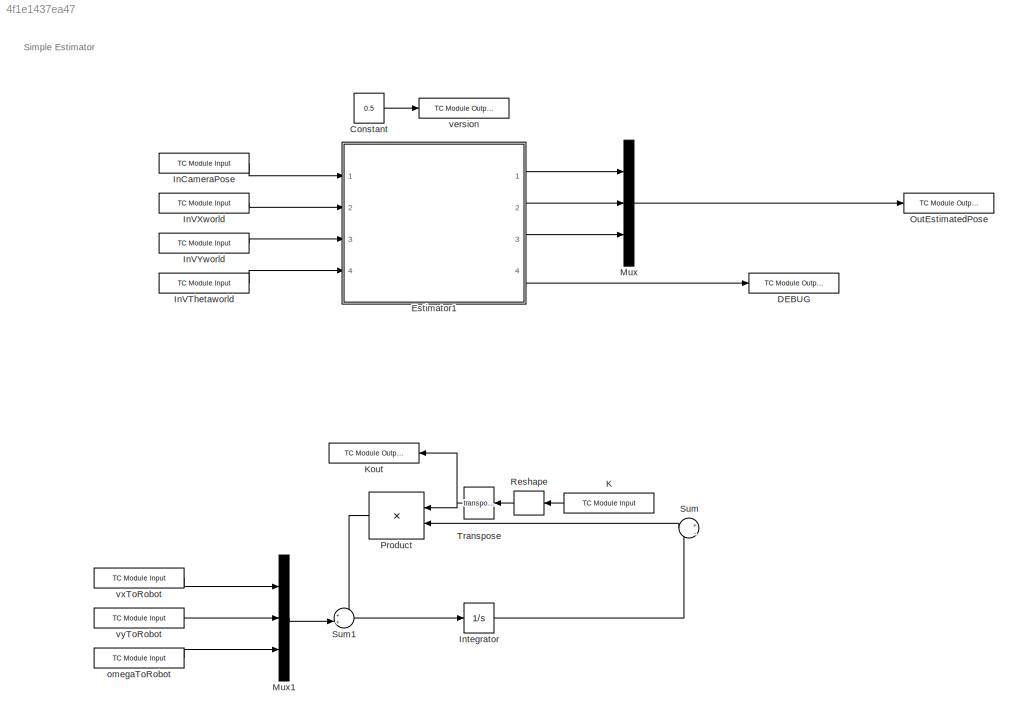
MODEL slx_4f1e1437ea47
KIND model
CONFIG AbsTol = auto
CONFIG EnableMultiTasking = off
CONFIG FixedStep = 0.01
CONFIG MaxStep = auto
CONFIG MinStep = auto
CONFIG RelTol = 1e-3
CONFIG SampleTimeConstraint = Unconstrained
CONFIG SolverName = ode1
CONFIG StartTime = 0.0
CONFIG StopTime = Inf
BLOCK [Constant] Constant
  Value = 0.5
BLOCK [Reference] DEBUG  REF=TcTargetLib/TC Module Output
  Ports = [1]
  SourceBlock = TcTargetLib/TC Module Output
  SourceProductName = Beckhoff TwinCAT Target
  SourceType = TC Module Output
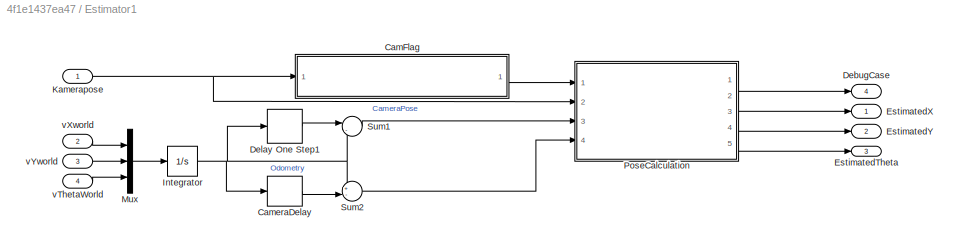
BLOCK [SubSystem] Estimator1
  Ports = [4, 4]
  RequestExecContextInheritance = off
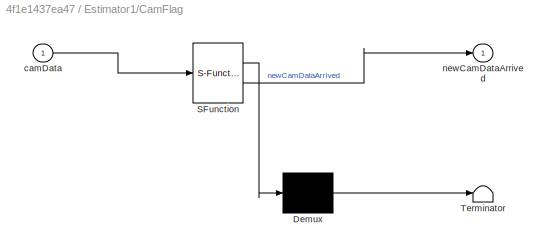
BLOCK [SubSystem] Estimator1/CamFlag
  ErrorFcn = Stateflow.Translate.translate
  NameLocation = top
  PermitHierarchicalResolution = ExplicitOnly
  Ports = [1, 1]
  RequestExecContextInheritance = off
  SFBlockType = MATLAB Function
  TreatAsAtomicUnit = on
BLOCK [Demux] Estimator1/CamFlag/ Demux 
  Outputs = 1
  Ports = [1, 1]
BLOCK [S-Function] Estimator1/CamFlag/ SFunction 
  EnableBusSupport = on
  FunctionName = sf_sfun
  PortCounts = [1 2]
  Ports = [1, 2]
  SFcnIsStateOwnerBlock = off
  SFunctionDeploymentMode = off
  Tag = Stateflow S-Function 4
BLOCK [Terminator] Estimator1/CamFlag/ Terminator 
BLOCK [Inport] Estimator1/CamFlag/camData
BLOCK [Outport] Estimator1/CamFlag/newCamDataArrived
BLOCK [Delay] Estimator1/CameraDelay
  DelayLength = 14
  InputPortMap = u0
  Ports = [1, 1]
BLOCK [Outport] Estimator1/DebugCase
  NameLocation = right
  Port = 4
BLOCK [Delay] Estimator1/Delay One Step1
  DelayLength = 1
  InputPortMap = u0
  Ports = [1, 1]
BLOCK [Outport] Estimator1/EstimatedTheta
  NameLocation = right
  Port = 3
BLOCK [Outport] Estimator1/EstimatedX
  NameLocation = right
BLOCK [Outport] Estimator1/EstimatedY
  NameLocation = right
  Port = 2
BLOCK [Integrator] Estimator1/Integrator
  Ports = [1, 1]
BLOCK [Inport] Estimator1/Kamerapose
BLOCK [Mux] Estimator1/Mux
  DisplayOption = bar
  Inputs = 3
  Ports = [3, 1]
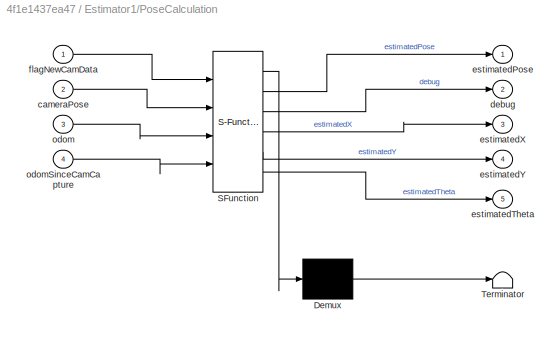
BLOCK [SubSystem] Estimator1/PoseCalculation
  ErrorFcn = Stateflow.Translate.translate
  PermitHierarchicalResolution = ExplicitOnly
  Ports = [4, 5]
  RequestExecContextInheritance = off
  SFBlockType = MATLAB Function
  TreatAsAtomicUnit = on
BLOCK [Demux] Estimator1/PoseCalculation/ Demux 
  Outputs = 1
  Ports = [1, 1]
BLOCK [S-Function] Estimator1/PoseCalculation/ SFunction 
  EnableBusSupport = on
  FunctionName = sf_sfun
  PortCounts = [4 6]
  Ports = [4, 6]
  SFcnIsStateOwnerBlock = off
  SFunctionDeploymentMode = off
  Tag = Stateflow S-Function 5
BLOCK [Terminator] Estimator1/PoseCalculation/ Terminator 
BLOCK [Inport] Estimator1/PoseCalculation/cameraPose
  Port = 2
BLOCK [Outport] Estimator1/PoseCalculation/debug
  Port = 2
BLOCK [Outport] Estimator1/PoseCalculation/estimatedPose
BLOCK [Outport] Estimator1/PoseCalculation/estimatedTheta
  Port = 5
BLOCK [Outport] Estimator1/PoseCalculation/estimatedX
  Port = 3
BLOCK [Outport] Estimator1/PoseCalculation/estimatedY
  Port = 4
BLOCK [Inport] Estimator1/PoseCalculation/flagNewCamData
BLOCK [Inport] Estimator1/PoseCalculation/odom
  Port = 3
BLOCK [Inport] Estimator1/PoseCalculation/odomSinceCamCapture
  Port = 4
BLOCK [Sum] Estimator1/Sum1
  Inputs = |-+
  Ports = [2, 1]
BLOCK [Sum] Estimator1/Sum2
  Inputs = +-|
  Ports = [2, 1]
BLOCK [Inport] Estimator1/vThetaWorld
  NameLocation = left
  Port = 4
BLOCK [Inport] Estimator1/vXworld
  NameLocation = left
  Port = 2
BLOCK [Inport] Estimator1/vYworld
  NameLocation = left
  Port = 3
BLOCK [Reference] InCameraPose  REF=TcTargetLib/TC Module Input
  NameLocation = left
  Ports = [0, 1]
  SourceBlock = TcTargetLib/TC Module Input
  SourceProductName = Beckhoff TwinCAT Target
  SourceType = TC Module Input
BLOCK [Reference] InVThetaworld  REF=TcTargetLib/TC Module Input
  NameLocation = left
  Ports = [0, 1]
  SourceBlock = TcTargetLib/TC Module Input
  SourceProductName = Beckhoff TwinCAT Target
  SourceType = TC Module Input
BLOCK [Reference] InVXworld  REF=TcTargetLib/TC Module Input
  NameLocation = left
  Ports = [0, 1]
  SourceBlock = TcTargetLib/TC Module Input
  SourceProductName = Beckhoff TwinCAT Target
  SourceType = TC Module Input
BLOCK [Reference] InVYworld  REF=TcTargetLib/TC Module Input
  NameLocation = left
  Ports = [0, 1]
  SourceBlock = TcTargetLib/TC Module Input
  SourceProductName = Beckhoff TwinCAT Target
  SourceType = TC Module Input
BLOCK [Integrator] Integrator
  Commented = on
  Ports = [1, 1]
BLOCK [Reference] K  REF=TcTargetLib/TC Module Input
  Commented = on
  NameLocation = right
  Ports = [0, 1]
  SourceBlock = TcTargetLib/TC Module Input
  SourceProductName = Beckhoff TwinCAT Target
  SourceType = TC Module Input
BLOCK [Reference] Kout  REF=TcTargetLib/TC Module Output
  Commented = on
  NameLocation = top
  Ports = [1]
  SourceBlock = TcTargetLib/TC Module Output
  SourceProductName = Beckhoff TwinCAT Target
  SourceType = TC Module Output
BLOCK [Mux] Mux
  DisplayOption = bar
  Inputs = 3
  Ports = [3, 1]
BLOCK [Mux] Mux1
  Commented = on
  DisplayOption = bar
  Inputs = 3
  Ports = [3, 1]
BLOCK [Reference] OutEstimatedPose  REF=TcTargetLib/TC Module Output
  Ports = [1]
  SourceBlock = TcTargetLib/TC Module Output
  SourceProductName = Beckhoff TwinCAT Target
  SourceType = TC Module Output
BLOCK [Product] Product
  Commented = on
  Multiplication = Matrix(*)
  NameLocation = top
  Ports = [2, 1]
BLOCK [Reshape] Reshape
  Commented = on
  NameLocation = top
  OutputDimensionality = Customize
  OutputDimensions = [3,3]
  Ports = [1, 1]
BLOCK [Sum] Sum
  Commented = on
  Inputs = +|-
  NameLocation = top
  Ports = [2, 1]
BLOCK [Sum] Sum1
  Commented = on
  Inputs = ++|
  Ports = [2, 1]
BLOCK [Math] Transpose
  Commented = on
  NameLocation = top
  Operator = transpose
  Ports = [1, 1]
BLOCK [Reference] omegaToRobot  REF=TcTargetLib/TC Module Input
  Commented = on
  NameLocation = left
  Ports = [0, 1]
  SourceBlock = TcTargetLib/TC Module Input
  SourceProductName = Beckhoff TwinCAT Target
  SourceType = TC Module Input
BLOCK [Reference] version  REF=TcTargetLib/TC Module Output
  Ports = [1]
  SourceBlock = TcTargetLib/TC Module Output
  SourceProductName = Beckhoff TwinCAT Target
  SourceType = TC Module Output
BLOCK [Reference] vxToRobot  REF=TcTargetLib/TC Module Input
  Commented = on
  NameLocation = left
  Ports = [0, 1]
  SourceBlock = TcTargetLib/TC Module Input
  SourceProductName = Beckhoff TwinCAT Target
  SourceType = TC Module Input
BLOCK [Reference] vyToRobot  REF=TcTargetLib/TC Module Input
  Commented = on
  NameLocation = left
  Ports = [0, 1]
  SourceBlock = TcTargetLib/TC Module Input
  SourceProductName = Beckhoff TwinCAT Target
  SourceType = TC Module Input
ANNOTATION (root): Simple Estimator
LINE Constant:1 -> version:1
LINE Estimator1/CamFlag:1 -> Estimator1/PoseCalculation:1
LINE Estimator1/CameraDelay:1 -> Estimator1/Sum2:2
LINE Estimator1/Delay One Step1:1 -> Estimator1/Sum1:1
NET Estimator1/Integrator:1 -> Estimator1/CameraDelay:1, Estimator1/Delay One Step1:1, Estimator1/Sum1:2, Estimator1/Sum2:1
NET Estimator1/Kamerapose:1 -> Estimator1/CamFlag:1, Estimator1/PoseCalculation:2
LINE Estimator1/Mux:1 -> Estimator1/Integrator:1
LINE Estimator1/PoseCalculation:2 -> Estimator1/DebugCase:1
LINE Estimator1/PoseCalculation:3 -> Estimator1/EstimatedX:1
LINE Estimator1/PoseCalculation:4 -> Estimator1/EstimatedY:1
LINE Estimator1/PoseCalculation:5 -> Estimator1/EstimatedTheta:1
LINE Estimator1/Sum1:1 -> Estimator1/PoseCalculation:3
LINE Estimator1/Sum2:1 -> Estimator1/PoseCalculation:4
LINE Estimator1/vThetaWorld:1 -> Estimator1/Mux:3
LINE Estimator1/vXworld:1 -> Estimator1/Mux:1
LINE Estimator1/vYworld:1 -> Estimator1/Mux:2
LINE Estimator1:1 -> Mux:1
LINE Estimator1:2 -> Mux:2
LINE Estimator1:3 -> Mux:3
LINE Estimator1:4 -> DEBUG:1
LINE InCameraPose:1 -> Estimator1:1
LINE InVThetaworld:1 -> Estimator1:4
LINE InVXworld:1 -> Estimator1:2
LINE InVYworld:1 -> Estimator1:3
LINE Integrator:1 -> Sum:2
LINE K:1 -> Reshape:1
LINE Mux1:1 -> Sum1:2
LINE Mux:1 -> OutEstimatedPose:1
LINE Product:1 -> Sum1:1
LINE Reshape:1 -> Transpose:1
LINE Sum1:1 -> Integrator:1
LINE Sum:1 -> Product:2
NET Transpose:1 -> Kout:1, Product:1
LINE omegaToRobot:1 -> Mux1:3
LINE vxToRobot:1 -> Mux1:1
LINE vyToRobot:1 -> Mux1:2
note: NET lines group one-source signal fan-out (src -> all destinations, sorted); 1:1 wires keep LINE
CHART Estimator1/CamFlag states=1 transitions=1
  STATE_LABEL 'eML_blk_kernel()'
  STATE_LABEL "SCRIPT:\nfunction newCamDataArrived = fcn(camData)\n\npersistent oldCamData\n\nif isempty(oldCamData)\n    oldCamData = [0 0 0]';\nend\n\nif any(camData(1:2)) && camData ~= oldCamData\n    newCamDataArrived = true;\nelse\n    newCamDataArrived = false;\n    oldCamData = camData;\nend\n"
CHART Estimator1/PoseCalculation states=1 transitions=1
  STATE_LABEL 'eML_blk_kernel()'
  STATE_LABEL "SCRIPT:\nfunction [estimatedPose, debug, estimatedX, estimatedY, estimatedTheta]= fcn(flagNewCamData, cameraPose, odom, odomSinceCamCapture)\n\n% Variables\npersistent estPoseOld\n\nif isempty(estPoseOld)\n    estPoseOld = [0 0 0]';\nend\n\n% Case 1: Camera Flag is set (New Cameradata) and CameraData is valid\nif flagNewCamData == 1\n    estimatedPose = cameraPose(1:3) + odomSinceCamCapture;   %OdomSinceCamCa...<+506ch>"
CHART  states=0 transitions=0
CHART  states=0 transitions=0
